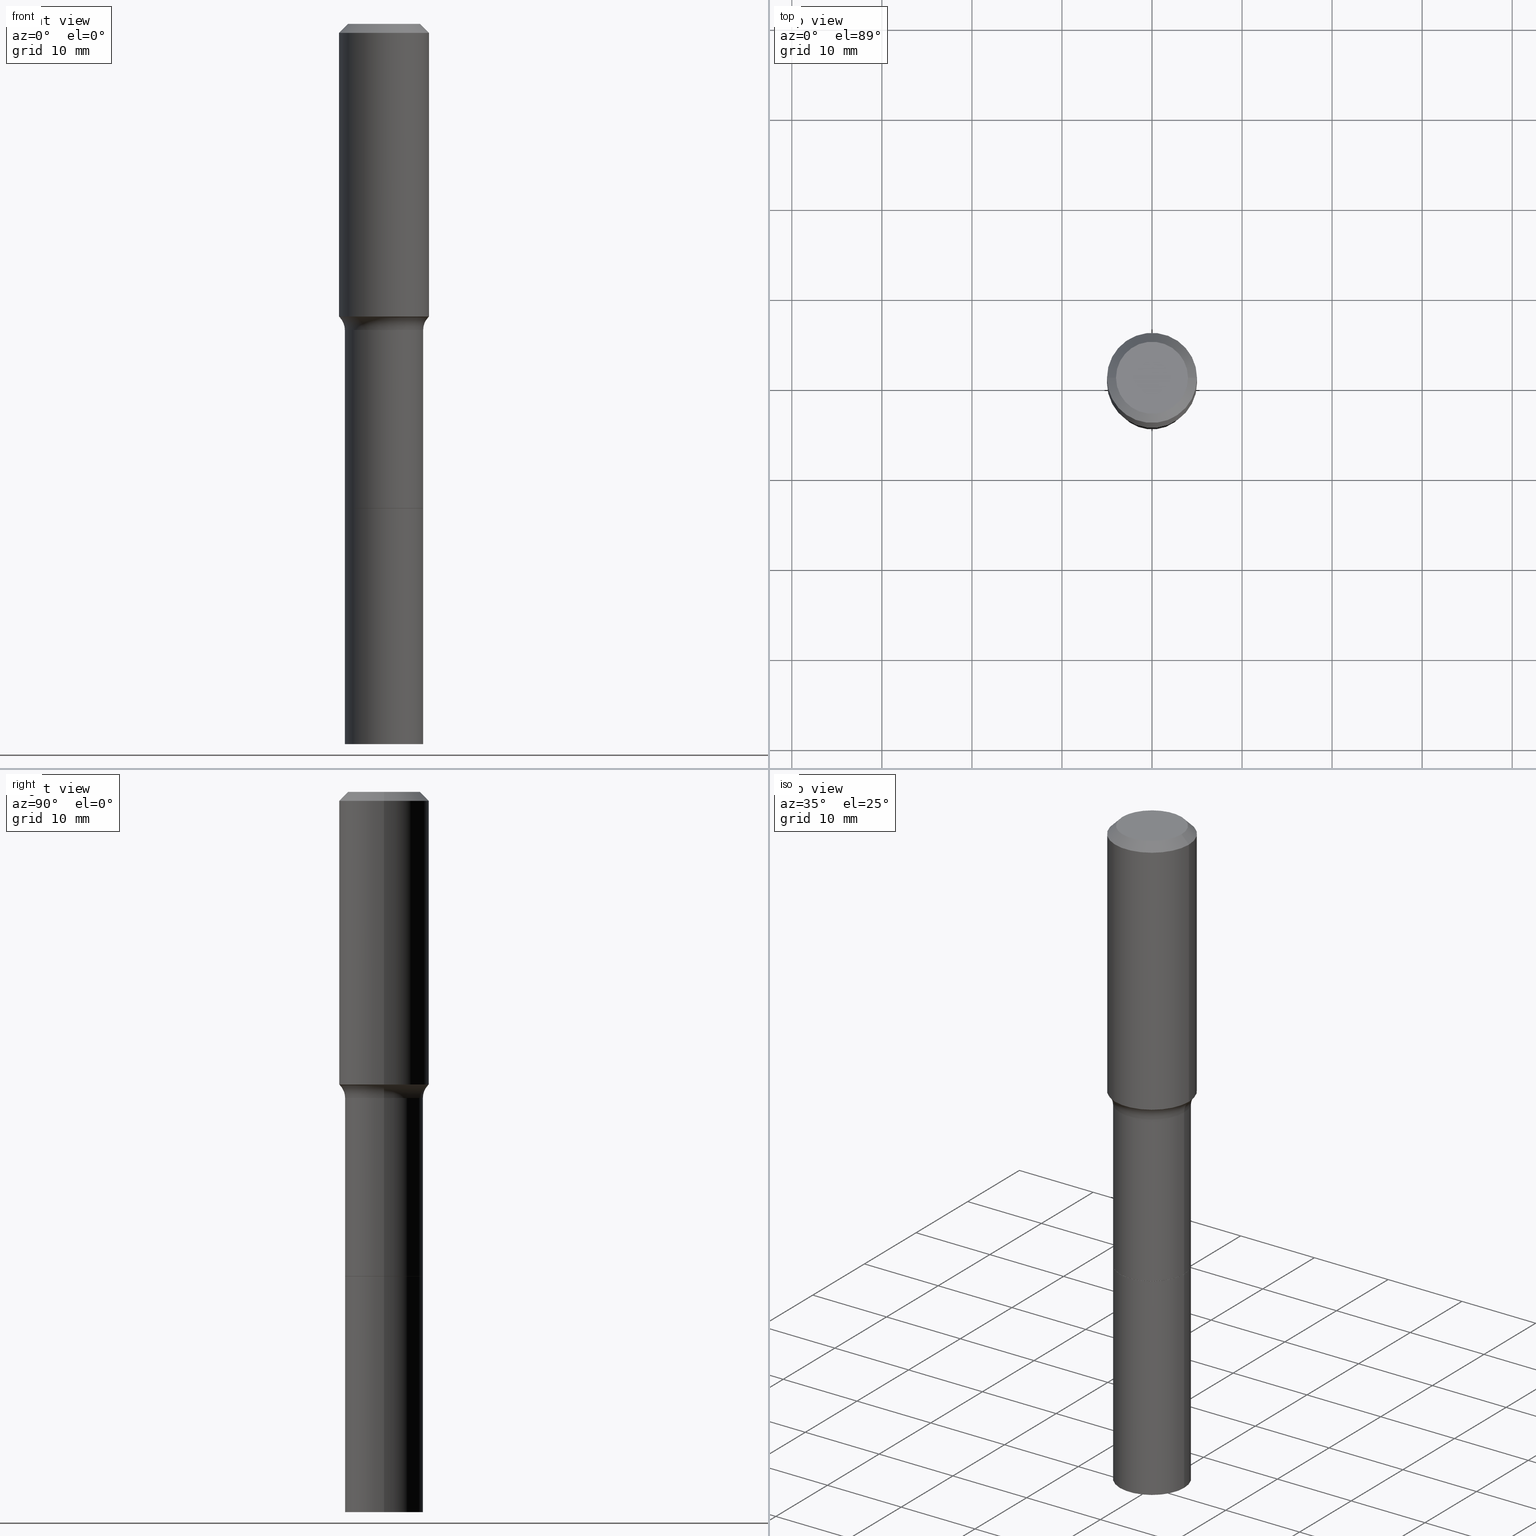
[diagram: canonical four-view strip — front | top / right | iso, engineering-drawing reading convention]
A machine part, canonical four-view strip (front | top / right | iso — engineering-drawing reading convention). The complete STEP part file that produces these views, byte-faithful:
ISO-10303-21;
HEADER;
FILE_DESCRIPTION (( 'STEP AP203' ),
    '1' );
FILE_NAME ('67764.STEP',
    '2025-04-01T15:30:21',
    ( '' ),
    ( '' ),
    'SwSTEP 2.0',
    'SolidWorks 2024',
    '' );
FILE_SCHEMA (( 'CONFIG_CONTROL_DESIGN' ));
ENDSEC;

DATA;
#1 = ADVANCED_FACE ( 'NONE', ( #477 ), #402, .F. ) ;
#2 = FACE_OUTER_BOUND ( 'NONE', #465, .T. ) ;
#3 = EDGE_LOOP ( 'NONE', ( #33, #315, #164, #121 ) ) ;
#4 = VECTOR ( 'NONE', #469, 39.37007874015748143 ) ;
#5 = CARTESIAN_POINT ( 'NONE',  ( 7.702248551960706711E-29, -1.099676962482037231E-14, -3.149600000000000399 ) ) ;
#6 = AXIS2_PLACEMENT_3D ( 'NONE', #200, #518, #433 ) ;
#7 = LINE ( 'NONE', #480, #115 ) ;
#8 = EDGE_LOOP ( 'NONE', ( #400, #41, #65, #184 ) ) ;
#9 = CARTESIAN_POINT ( 'NONE',  ( 0.1712500000000001243, -8.592884723026863288E-15, -2.118600000000000261 ) ) ;
#10 = VECTOR ( 'NONE', #87, 39.37007874015748143 ) ;
#11 = LOCAL_TIME ( 11, 30, 21.00000000000000000, #49 ) ;
#12 = APPROVAL_STATUS ( 'not_yet_approved' ) ;
#13 = DIRECTION ( 'NONE',  ( -1.000000000000000000, 7.105427357601001859E-15, 0.000000000000000000 ) ) ;
#14 = CONICAL_SURFACE ( 'NONE', #149, 0.1927417038704663244, 0.7504915783575625277 ) ;
#15 = EDGE_CURVE ( 'NONE', #82, #386, #328, .T. ) ;
#16 = APPLICATION_PROTOCOL_DEFINITION ( 'international standard', 'config_control_design', 1994, #340 ) ;
#17 = CYLINDRICAL_SURFACE ( 'NONE', #35, 0.1712499999999999856 ) ;
#18 = CARTESIAN_POINT ( 'NONE',  ( 7.702248551960706711E-29, -1.099676962482037231E-14, -3.149600000000000399 ) ) ;
#19 = CONICAL_SURFACE ( 'NONE', #361, 0.1927417038704663244, 0.7504915783575625277 ) ;
#20 = CYLINDRICAL_SURFACE ( 'NONE', #101, 0.1968500000000001082 ) ;
#21 = DIMENSIONAL_EXPONENTS ( 1.000000000000000000, 0.000000000000000000, 0.000000000000000000, 0.000000000000000000, 0.000000000000000000, 0.000000000000000000, 0.000000000000000000 ) ;
#22 = CARTESIAN_POINT ( 'NONE',  ( 3.140080086727243582E-29, -4.483202156393049043E-15, -1.284040131195000489 ) ) ;
#23 = DIRECTION ( 'NONE',  ( -2.445468806185136597E-29, 3.491481338843145583E-15, 1.000000000000000000 ) ) ;
#24 = ORIENTED_EDGE ( 'NONE', *, *, #503, .F. ) ;
#25 = EDGE_CURVE ( 'NONE', #114, #346, #7, .T. ) ;
#26 = CARTESIAN_POINT ( 'NONE',  ( 3.129306309250937286E-29, -4.467820057503775175E-15, -1.279634522974172794 ) ) ;
#27 = EDGE_LOOP ( 'NONE', ( #510, #459, #431, #506 ) ) ;
#28 = ADVANCED_FACE ( 'NONE', ( #130 ), #356, .T. ) ;
#29 = FACE_OUTER_BOUND ( 'NONE', #478, .T. ) ;
#30 = ORIENTED_EDGE ( 'NONE', *, *, #429, .T. ) ;
#31 = DIRECTION ( 'NONE',  ( -1.000000000000000000, 6.982962677686266711E-15, 0.000000000000000000 ) ) ;
#32 = CC_DESIGN_PERSON_AND_ORGANIZATION_ASSIGNMENT ( #414, #373, ( #60 ) ) ;
#33 = ORIENTED_EDGE ( 'NONE', *, *, #380, .T. ) ;
#34 = DIRECTION ( 'NONE',  ( -2.445468806185136597E-29, 3.491481338843145583E-15, 1.000000000000000000 ) ) ;
#35 = AXIS2_PLACEMENT_3D ( 'NONE', #372, #56, #215 ) ;
#36 = LOCAL_TIME ( 11, 30, 21.00000000000000000, #408 ) ;
#37 = CIRCLE ( 'NONE', #146, 0.07999999999999996003 ) ;
#38 = EDGE_LOOP ( 'NONE', ( #228, #310, #397, #43 ) ) ;
#39 = CARTESIAN_POINT ( 'NONE',  ( -0.1968500000000000527, 1.237136582792286422E-15, -0.03937000000000030059 ) ) ;
#40 = CARTESIAN_POINT ( 'NONE',  ( 5.180970212783830997E-29, -7.397052364473088378E-15, -2.118600000000000261 ) ) ;
#41 = ORIENTED_EDGE ( 'NONE', *, *, #166, .T. ) ;
#42 = CARTESIAN_POINT ( 'NONE',  ( -0.1968500000000001082, 1.398703375343757985E-15, -9.682923725166787881E-30 ) ) ;
#43 = ORIENTED_EDGE ( 'NONE', *, *, #232, .F. ) ;
#44 = CIRCLE ( 'NONE', #251, 0.1968500000000000527 ) ;
#45 = PERSON_AND_ORGANIZATION_ROLE ( 'creator' ) ;
#46 = ADVANCED_FACE ( 'NONE', ( #92 ), #14, .T. ) ;
#47 = ORIENTED_EDGE ( 'NONE', *, *, #326, .T. ) ;
#48 = PRODUCT ( '67764', '67764', '', ( #479 ) ) ;
#49 = COORDINATED_UNIVERSAL_TIME_OFFSET ( 5, 0, .BEHIND. ) ;
#50 = DIRECTION ( 'NONE',  ( 1.000000000000000000, -6.982962677686264344E-15, 0.000000000000000000 ) ) ;
#51 = CIRCLE ( 'NONE', #269, 0.1707500000000000129 ) ;
#52 = COORDINATED_UNIVERSAL_TIME_OFFSET ( 5, 0, .BEHIND. ) ;
#53 = CARTESIAN_POINT ( 'NONE',  ( -0.1712500000000000133, -7.980106559657557892E-15, -2.118600000000000261 ) ) ;
#54 = DIRECTION ( 'NONE',  ( 2.438088387897960049E-29, -3.491481338843145188E-15, -1.000000000000000000 ) ) ;
#55 = PERSON_AND_ORGANIZATION ( #57, #201 ) ;
#56 = DIRECTION ( 'NONE',  ( -2.445468806185136597E-29, 3.491481338843145583E-15, 1.000000000000000000 ) ) ;
#57 = PERSON ( 'UNSPECIFIED', 'UNSPECIFIED', 'UNSPECIFIED', ('UNSPECIFIED'), ('UNSPECIFIED'), ('UNSPECIFIED') ) ;
#58 = DIRECTION ( 'NONE',  ( -2.445468806185136597E-29, 3.491481338843145583E-15, 1.000000000000000000 ) ) ;
#59 = CONICAL_SURFACE ( 'NONE', #111, 0.1968500000000000527, 0.7853981633974450594 ) ;
#60 = PRODUCT_DEFINITION_FORMATION_WITH_SPECIFIED_SOURCE ( 'ANY', '', #48, .NOT_KNOWN. ) ;
#61 = DIRECTION ( 'NONE',  ( -2.445468806185136597E-29, 3.491481338843145583E-15, 1.000000000000000000 ) ) ;
#62 = EDGE_CURVE ( 'NONE', #119, #233, #273, .T. ) ;
#63 = CARTESIAN_POINT ( 'NONE',  ( 3.273504543959424474E-29, -4.673696920175435525E-15, -1.338600000000000234 ) ) ;
#64 = EDGE_CURVE ( 'NONE', #320, #346, #349, .T. ) ;
#65 = ORIENTED_EDGE ( 'NONE', *, *, #123, .T. ) ;
#66 = CARTESIAN_POINT ( 'NONE',  ( 2.814045157332559915E-29, -1.078662376088720765E-14, -2.118600000000000261 ) ) ;
#67 = EDGE_LOOP ( 'NONE', ( #75, #117, #191, #342 ) ) ;
#68 = ADVANCED_FACE ( 'NONE', ( #415 ), #17, .T. ) ;
#69 = AXIS2_PLACEMENT_3D ( 'NONE', #100, #108, #185 ) ;
#70 = DIRECTION ( 'NONE',  ( -2.445468806185136597E-29, 3.491481338843145583E-15, 1.000000000000000000 ) ) ;
#71 = AXIS2_PLACEMENT_3D ( 'NONE', #131, #258, #490 ) ;
#72 = DIRECTION ( 'NONE',  ( 1.000000000000000000, -6.982962677686266711E-15, 4.876176775795935793E-29 ) ) ;
#73 = ORIENTED_EDGE ( 'NONE', *, *, #206, .F. ) ;
#74 = CARTESIAN_POINT ( 'NONE',  ( -0.1712499999999999856, 1.216804434989171466E-15, -8.423676342061525262E-30 ) ) ;
#75 = ORIENTED_EDGE ( 'NONE', *, *, #429, .F. ) ;
#76 = DIRECTION ( 'NONE',  ( -2.445468806185136597E-29, 3.491481338843145583E-15, 1.000000000000000000 ) ) ;
#77 = AXIS2_PLACEMENT_3D ( 'NONE', #132, #334, #13 ) ;
#78 = AXIS2_PLACEMENT_3D ( 'NONE', #511, #466, #274 ) ;
#79 = EDGE_CURVE ( 'NONE', #391, #405, #374, .T. ) ;
#80 = CARTESIAN_POINT ( 'NONE',  ( -0.1927417038704663244, -3.113689980761206518E-15, -1.284040131195000489 ) ) ;
#81 =( LENGTH_UNIT ( ) NAMED_UNIT ( * ) SI_UNIT ( $, .METRE. ) );
#82 = VERTEX_POINT ( 'NONE', #142 ) ;
#83 = DIRECTION ( 'NONE',  ( 1.000000000000000000, -6.982962677686265133E-15, 0.000000000000000000 ) ) ;
#84 = EDGE_LOOP ( 'NONE', ( #428, #152, #277, #88 ) ) ;
#85 = ADVANCED_BREP_SHAPE_REPRESENTATION ( '67764', ( #86, #256, #71 ), #113 ) ;
#86 = MANIFOLD_SOLID_BREP ( 'Body-Move/Copy2[1]', #203 ) ;
#87 = DIRECTION ( 'NONE',  ( -2.445468806185136877E-29, 3.491481338843145188E-15, 1.000000000000000000 ) ) ;
#88 = ORIENTED_EDGE ( 'NONE', *, *, #64, .F. ) ;
#89 = AXIS2_PLACEMENT_3D ( 'NONE', #343, #348, #460 ) ;
#90 = APPLICATION_PROTOCOL_DEFINITION ( 'international standard', 'config_control_design', 1994, #368 ) ;
#91 = DIRECTION ( 'NONE',  ( 1.000000000000000000, -6.982962677686266711E-15, 4.876176775795935793E-29 ) ) ;
#92 = FACE_OUTER_BOUND ( 'NONE', #318, .T. ) ;
#93 = CARTESIAN_POINT ( 'NONE',  ( 0.1712499999999999856, -1.195832358553773135E-15, 8.350452728550539064E-30 ) ) ;
#94 = PERSON_AND_ORGANIZATION_ROLE ( 'creator' ) ;
#95 = DIRECTION ( 'NONE',  ( 1.000000000000000000, -6.982962677686265133E-15, 0.000000000000000000 ) ) ;
#96 = AXIS2_PLACEMENT_3D ( 'NONE', #22, #70, #454 ) ;
#97 = CARTESIAN_POINT ( 'NONE',  ( 0.1707500000000000129, -8.589393241688020280E-15, -2.118600000000000261 ) ) ;
#98 = APPROVAL_STATUS ( 'not_yet_approved' ) ;
#99 = CYLINDRICAL_SURFACE ( 'NONE', #434, 0.1968500000000001082 ) ;
#100 = CARTESIAN_POINT ( 'NONE',  ( 5.180970212783830997E-29, -7.397052364473088378E-15, -2.118600000000000261 ) ) ;
#101 = AXIS2_PLACEMENT_3D ( 'NONE', #491, #497, #409 ) ;
#102 = PRODUCT_RELATED_PRODUCT_CATEGORY ( 'detail', '', ( #48 ) ) ;
#103 = CARTESIAN_POINT ( 'NONE',  ( 5.180970212783830997E-29, -7.397052364473088378E-15, -2.118600000000000261 ) ) ;
#104 = VERTEX_POINT ( 'NONE', #338 ) ;
#105 = DIRECTION ( 'NONE',  ( -2.445468806185136597E-29, 3.491481338843145583E-15, 1.000000000000000000 ) ) ;
#106 = EDGE_CURVE ( 'NONE', #436, #119, #171, .T. ) ;
#107 = ORIENTED_EDGE ( 'NONE', *, *, #194, .F. ) ;
#108 = DIRECTION ( 'NONE',  ( -2.445468806185136597E-29, 3.491481338843145583E-15, 1.000000000000000000 ) ) ;
#109 = CC_DESIGN_PERSON_AND_ORGANIZATION_ASSIGNMENT ( #212, #45, ( #60 ) ) ;
#110 = ORIENTED_EDGE ( 'NONE', *, *, #352, .T. ) ;
#111 = AXIS2_PLACEMENT_3D ( 'NONE', #235, #283, #435 ) ;
#112 = CARTESIAN_POINT ( 'NONE',  ( 5.180970212783832118E-29, -7.397052364473089956E-15, -2.118600000000000261 ) ) ;
#113 =( GEOMETRIC_REPRESENTATION_CONTEXT ( 3 ) GLOBAL_UNCERTAINTY_ASSIGNED_CONTEXT ( ( #416 ) ) GLOBAL_UNIT_ASSIGNED_CONTEXT ( ( #358, #165, #135 ) ) REPRESENTATION_CONTEXT ( 'NONE', 'WORKASPACE' ) );
#114 = VERTEX_POINT ( 'NONE', #97 ) ;
#115 = VECTOR ( 'NONE', #167, 39.37007874015748143 ) ;
#116 = CARTESIAN_POINT ( 'NONE',  ( 9.627810689950955906E-31, -1.374596203102556794E-16, -0.03937000000000030059 ) ) ;
#117 = ORIENTED_EDGE ( 'NONE', *, *, #281, .T. ) ;
#118 = DIRECTION ( 'NONE',  ( -2.445468806185136597E-29, 3.491481338843145583E-15, 1.000000000000000000 ) ) ;
#119 = VERTEX_POINT ( 'NONE', #292 ) ;
#120 = AXIS2_PLACEMENT_3D ( 'NONE', #252, #175, #136 ) ;
#121 = ORIENTED_EDGE ( 'NONE', *, *, #160, .F. ) ;
#122 = DIRECTION ( 'NONE',  ( -2.445468806185136597E-29, 3.491481338843145583E-15, 1.000000000000000000 ) ) ;
#123 = EDGE_CURVE ( 'NONE', #350, #104, #249, .T. ) ;
#124 = VERTEX_POINT ( 'NONE', #177 ) ;
#125 = CARTESIAN_POINT ( 'NONE',  ( 0.1968500000000000527, -1.512055823412797583E-15, -0.03937000000000030059 ) ) ;
#126 = ORIENTED_EDGE ( 'NONE', *, *, #396, .T. ) ;
#127 = ADVANCED_FACE ( 'NONE', ( #300 ), #20, .T. ) ;
#128 = PERSON_AND_ORGANIZATION ( #57, #201 ) ;
#129 = CIRCLE ( 'NONE', #323, 0.1707500000000000129 ) ;
#130 = FACE_OUTER_BOUND ( 'NONE', #353, .T. ) ;
#131 = CARTESIAN_POINT ( 'NONE',  ( 0.000000000000000000, 0.000000000000000000, 0.000000000000000000 ) ) ;
#132 = CARTESIAN_POINT ( 'NONE',  ( -0.2512499999999999734, -2.888458296578183998E-15, -1.338600000000000234 ) ) ;
#133 = SECURITY_CLASSIFICATION_LEVEL ( 'unclassified' ) ;
#134 = DIRECTION ( 'NONE',  ( -2.445468806185136597E-29, 3.491481338843145583E-15, 1.000000000000000000 ) ) ;
#135 =( NAMED_UNIT ( * ) SI_UNIT ( $, .STERADIAN. ) SOLID_ANGLE_UNIT ( ) );
#136 = DIRECTION ( 'NONE',  ( 1.000000000000000000, -6.982962677686265922E-15, 4.876223630392693006E-29 ) ) ;
#137 = APPROVAL_PERSON_ORGANIZATION ( #55, #197, #248 ) ;
#138 = DATE_TIME_ROLE ( 'classification_date' ) ;
#139 = DIRECTION ( 'NONE',  ( -2.445468806185136877E-29, 3.491481338843145188E-15, 1.000000000000000000 ) ) ;
#140 = EDGE_CURVE ( 'NONE', #391, #168, #463, .T. ) ;
#141 = FACE_OUTER_BOUND ( 'NONE', #359, .T. ) ;
#142 = CARTESIAN_POINT ( 'NONE',  ( -0.1927417038704663244, -3.113689980761206518E-15, -1.284040131195000489 ) ) ;
#143 = EDGE_CURVE ( 'NONE', #82, #354, #304, .T. ) ;
#144 = DIRECTION ( 'NONE',  ( -2.445468806185136597E-29, 3.491481338843145583E-15, 1.000000000000000000 ) ) ;
#145 = ORIENTED_EDGE ( 'NONE', *, *, #493, .F. ) ;
#146 = AXIS2_PLACEMENT_3D ( 'NONE', #246, #487, #208 ) ;
#147 = FACE_OUTER_BOUND ( 'NONE', #243, .T. ) ;
#148 = ORIENTED_EDGE ( 'NONE', *, *, #503, .T. ) ;
#149 = AXIS2_PLACEMENT_3D ( 'NONE', #247, #515, #236 ) ;
#150 = LINE ( 'NONE', #309, #305 ) ;
#151 = FACE_OUTER_BOUND ( 'NONE', #8, .T. ) ;
#152 = ORIENTED_EDGE ( 'NONE', *, *, #206, .T. ) ;
#153 = CIRCLE ( 'NONE', #418, 0.1712499999999999023 ) ;
#154 = LINE ( 'NONE', #74, #10 ) ;
#155 = APPROVAL_PERSON_ORGANIZATION ( #333, #365, #406 ) ;
#156 = EDGE_LOOP ( 'NONE', ( #223, #231 ) ) ;
#157 = ADVANCED_FACE ( 'NONE', ( #446 ), #494, .F. ) ;
#158 = CARTESIAN_POINT ( 'NONE',  ( -0.1968500000000000527, -9.039364635632571956E-16, -0.03937000000000030059 ) ) ;
#159 = ORIENTED_EDGE ( 'NONE', *, *, #308, .T. ) ;
#160 = EDGE_CURVE ( 'NONE', #346, #467, #298, .T. ) ;
#161 = FACE_OUTER_BOUND ( 'NONE', #38, .T. ) ;
#162 = ORIENTED_EDGE ( 'NONE', *, *, #450, .F. ) ;
#163 = AXIS2_PLACEMENT_3D ( 'NONE', #116, #122, #438 ) ;
#164 = ORIENTED_EDGE ( 'NONE', *, *, #301, .F. ) ;
#165 =( NAMED_UNIT ( * ) PLANE_ANGLE_UNIT ( ) SI_UNIT ( $, .RADIAN. ) );
#166 = EDGE_CURVE ( 'NONE', #82, #350, #440, .T. ) ;
#167 = DIRECTION ( 'NONE',  ( 0.7071067811864509833, -2.468850131081245741E-15, 0.7071067811866440511 ) ) ;
#168 = VERTEX_POINT ( 'NONE', #210 ) ;
#169 = CIRCLE ( 'NONE', #163, 0.1968500000000000527 ) ;
#170 = CARTESIAN_POINT ( 'NONE',  ( 0.1927417038704663244, -5.829110280954173531E-15, -1.284040131195000489 ) ) ;
#171 = LINE ( 'NONE', #9, #268 ) ;
#172 = CALENDAR_DATE ( 2025, 1, 4 ) ;
#173 = CARTESIAN_POINT ( 'NONE',  ( -9.427742298522567634E-47, 1.346031739168368355E-32, 3.855188123715870730E-18 ) ) ;
#174 = APPROVAL_DATE_TIME ( #207, #197 ) ;
#175 = DIRECTION ( 'NONE',  ( -2.445468806185136597E-29, 3.491481338843145583E-15, 1.000000000000000000 ) ) ;
#176 = SECURITY_CLASSIFICATION ( '', '', #133 ) ;
#177 = CARTESIAN_POINT ( 'NONE',  ( -0.1712500000000002354, -7.980106559657554736E-15, -3.149600000000000399 ) ) ;
#178 = DIRECTION ( 'NONE',  ( 1.000000000000000000, -6.982962677686266711E-15, 0.000000000000000000 ) ) ;
#179 = ORIENTED_EDGE ( 'NONE', *, *, #106, .T. ) ;
#180 = DIRECTION ( 'NONE',  ( 2.445468806185136597E-29, -3.491481338843145583E-15, -1.000000000000000000 ) ) ;
#181 = ORIENTED_EDGE ( 'NONE', *, *, #396, .F. ) ;
#182 = VECTOR ( 'NONE', #285, 39.37007874015748143 ) ;
#183 = CARTESIAN_POINT ( 'NONE',  ( 3.129306309250937286E-29, -4.467820057503775175E-15, -1.279634522974172794 ) ) ;
#184 = ORIENTED_EDGE ( 'NONE', *, *, #281, .F. ) ;
#185 = DIRECTION ( 'NONE',  ( 1.000000000000000000, -6.982962677686269077E-15, 0.000000000000000000 ) ) ;
#186 = ORIENTED_EDGE ( 'NONE', *, *, #453, .T. ) ;
#187 = CARTESIAN_POINT ( 'NONE',  ( 3.273504543959424474E-29, -4.673696920175435525E-15, -1.338600000000000234 ) ) ;
#188 = EDGE_LOOP ( 'NONE', ( #148, #110, #286, #196 ) ) ;
#189 = DIRECTION ( 'NONE',  ( 1.000000000000000000, -6.982962677686266711E-15, 0.000000000000000000 ) ) ;
#190 = EDGE_CURVE ( 'NONE', #436, #124, #512, .T. ) ;
#191 = ORIENTED_EDGE ( 'NONE', *, *, #493, .T. ) ;
#192 = LENGTH_MEASURE_WITH_UNIT ( LENGTH_MEASURE( 0.02539999999999999897 ), #81 );
#193 = DIRECTION ( 'NONE',  ( -2.445468806185136597E-29, 3.491481338843145583E-15, 1.000000000000000000 ) ) ;
#194 = EDGE_CURVE ( 'NONE', #168, #391, #464, .T. ) ;
#195 = DIRECTION ( 'NONE',  ( -2.445468806185136597E-29, 3.491481338843145583E-15, 1.000000000000000000 ) ) ;
#196 = ORIENTED_EDGE ( 'NONE', *, *, #25, .F. ) ;
#197 = APPROVAL ( #254, 'UNSPECIFIED' ) ;
#198 = LINE ( 'NONE', #42, #199 ) ;
#199 = VECTOR ( 'NONE', #517, 39.37007874015748143 ) ;
#200 = CARTESIAN_POINT ( 'NONE',  ( 5.180970212783830997E-29, -7.397052364473088378E-15, -2.118600000000000261 ) ) ;
#201 = ORGANIZATION ( 'UNSPECIFIED', 'UNSPECIFIED', '' ) ;
#202 = APPROVAL_DATE_TIME ( #205, #365 ) ;
#203 = CLOSED_SHELL ( 'NONE', ( #245, #393, #28, #1 ) ) ;
#204 = ORIENTED_EDGE ( 'NONE', *, *, #483, .T. ) ;
#205 = DATE_AND_TIME ( #295, #261 ) ;
#206 = EDGE_CURVE ( 'NONE', #423, #114, #129, .T. ) ;
#207 = DATE_AND_TIME ( #486, #11 ) ;
#208 = DIRECTION ( 'NONE',  ( 1.000000000000000000, -6.982962677686262766E-15, 0.000000000000000000 ) ) ;
#209 = TOROIDAL_SURFACE ( 'NONE', #504, 0.2512499999999999734, 0.08000000000000000167 ) ;
#210 = CARTESIAN_POINT ( 'NONE',  ( -0.1574800000000000089, 1.168406772637159815E-15, 3.855188123707939751E-18 ) ) ;
#211 = APPROVAL ( #12, 'UNSPECIFIED' ) ;
#212 = PERSON_AND_ORGANIZATION ( #57, #201 ) ;
#213 = CARTESIAN_POINT ( 'NONE',  ( 0.1968500000000000527, -1.487948651171581996E-15, -0.03937000000000030059 ) ) ;
#214 = CALENDAR_DATE ( 2025, 1, 4 ) ;
#215 = DIRECTION ( 'NONE',  ( 1.000000000000000000, -6.982962677686266711E-15, 4.876176775795935793E-29 ) ) ;
#216 = ADVANCED_FACE ( 'NONE', ( #255 ), #99, .T. ) ;
#217 = AXIS2_PLACEMENT_3D ( 'NONE', #332, #455, #50 ) ;
#218 = DIRECTION ( 'NONE',  ( -1.000000000000000000, 6.982962677686265922E-15, -4.876176775795935793E-29 ) ) ;
#219 = AXIS2_PLACEMENT_3D ( 'NONE', #376, #54, #218 ) ;
#220 = CONICAL_SURFACE ( 'NONE', #371, 0.1707500000000000129, 0.7853981633973118326 ) ;
#221 = CARTESIAN_POINT ( 'NONE',  ( 3.140080086727243582E-29, -4.483202156393049043E-15, -1.284040131195000489 ) ) ;
#222 = FACE_OUTER_BOUND ( 'NONE', #84, .T. ) ;
#223 = ORIENTED_EDGE ( 'NONE', *, *, #62, .T. ) ;
#224 = DIRECTION ( 'NONE',  ( 1.000000000000000000, -6.982962677686266711E-15, 0.000000000000000000 ) ) ;
#225 = ORIENTED_EDGE ( 'NONE', *, *, #190, .F. ) ;
#226 = TOROIDAL_SURFACE ( 'NONE', #513, 0.2512499999999999734, 0.08000000000000000167 ) ;
#227 = CYLINDRICAL_SURFACE ( 'NONE', #411, 0.1712499999999999856 ) ;
#228 = ORIENTED_EDGE ( 'NONE', *, *, #166, .F. ) ;
#229 = CLOSED_SHELL ( 'NONE', ( #294, #509, #127, #46, #472, #339, #68, #468, #312, #216, #383, #157, #329, #362 ) ) ;
#230 = DIRECTION ( 'NONE',  ( -2.445468806185136597E-29, 3.491481338843145583E-15, 1.000000000000000000 ) ) ;
#231 = ORIENTED_EDGE ( 'NONE', *, *, #347, .T. ) ;
#232 = EDGE_CURVE ( 'NONE', #350, #467, #37, .T. ) ;
#233 = VERTEX_POINT ( 'NONE', #53 ) ;
#234 = CIRCLE ( 'NONE', #316, 0.1712500000000000133 ) ;
#235 = CARTESIAN_POINT ( 'NONE',  ( 9.627810689950955906E-31, -1.374596203102556794E-16, -0.03937000000000030059 ) ) ;
#236 = DIRECTION ( 'NONE',  ( 1.000000000000000000, -6.982962677686264344E-15, 0.000000000000000000 ) ) ;
#237 = LINE ( 'NONE', #319, #4 ) ;
#238 = ORIENTED_EDGE ( 'NONE', *, *, #79, .T. ) ;
#239 = CC_DESIGN_DATE_AND_TIME_ASSIGNMENT ( #330, #370, ( #403 ) ) ;
#240 = ORIENTED_EDGE ( 'NONE', *, *, #194, .T. ) ;
#241 = CARTESIAN_POINT ( 'NONE',  ( 3.273504543959424474E-29, -4.673696920175435525E-15, -1.338600000000000234 ) ) ;
#242 = CIRCLE ( 'NONE', #345, 0.1968500000000001915 ) ;
#243 = EDGE_LOOP ( 'NONE', ( #470, #204, #284, #461 ) ) ;
#244 = CALENDAR_DATE ( 2025, 1, 4 ) ;
#245 = ADVANCED_FACE ( 'NONE', ( #147 ), #508, .T. ) ;
#246 = CARTESIAN_POINT ( 'NONE',  ( 0.2512499999999999734, -6.428166292944109721E-15, -1.338600000000000234 ) ) ;
#247 = CARTESIAN_POINT ( 'NONE',  ( 3.140080086727243582E-29, -4.483202156393049043E-15, -1.284040131195000489 ) ) ;
#248 = APPROVAL_ROLE ( '' ) ;
#249 = LINE ( 'NONE', #170, #296 ) ;
#250 = PERSON_AND_ORGANIZATION ( #57, #201 ) ;
#251 = AXIS2_PLACEMENT_3D ( 'NONE', #381, #144, #178 ) ;
#252 = CARTESIAN_POINT ( 'NONE',  ( -9.427742298522567634E-47, 1.346031739168368355E-32, 3.855188123715870730E-18 ) ) ;
#253 = EDGE_CURVE ( 'NONE', #104, #386, #242, .T. ) ;
#254 = APPROVAL_STATUS ( 'not_yet_approved' ) ;
#255 = FACE_OUTER_BOUND ( 'NONE', #67, .T. ) ;
#256 = MANIFOLD_SOLID_BREP ( 'Body-Move/Copy2[2]', #229 ) ;
#257 = CC_DESIGN_PERSON_AND_ORGANIZATION_ASSIGNMENT ( #293, #335, ( #176 ) ) ;
#258 = DIRECTION ( 'NONE',  ( 0.000000000000000000, 0.000000000000000000, 1.000000000000000000 ) ) ;
#259 = CARTESIAN_POINT ( 'NONE',  ( 0.000000000000000000, 0.000000000000000000, 0.000000000000000000 ) ) ;
#260 = DIRECTION ( 'NONE',  ( 1.000000000000000000, -6.982962677686266711E-15, 0.000000000000000000 ) ) ;
#261 = LOCAL_TIME ( 11, 30, 21.00000000000000000, #492 ) ;
#262 = DIRECTION ( 'NONE',  ( -0.7071067811864509833, 7.493145998870005484E-15, 0.7071067811866440511 ) ) ;
#263 = EDGE_LOOP ( 'NONE', ( #240, #265 ) ) ;
#264 = DIRECTION ( 'NONE',  ( 1.000000000000000000, -6.982962677686265922E-15, 0.000000000000000000 ) ) ;
#265 = ORIENTED_EDGE ( 'NONE', *, *, #140, .T. ) ;
#266 = DIRECTION ( 'NONE',  ( -2.445468806185136597E-29, 3.491481338843145583E-15, 1.000000000000000000 ) ) ;
#267 = ORIENTED_EDGE ( 'NONE', *, *, #253, .T. ) ;
#268 = VECTOR ( 'NONE', #139, 39.37007874015748143 ) ;
#269 = AXIS2_PLACEMENT_3D ( 'NONE', #471, #118, #432 ) ;
#270 = DIRECTION ( 'NONE',  ( 1.000000000000000000, -6.982962677686266711E-15, 0.000000000000000000 ) ) ;
#271 = LOCAL_TIME ( 11, 30, 21.00000000000000000, #52 ) ;
#272 = EDGE_LOOP ( 'NONE', ( #382, #437, #366, #282 ) ) ;
#273 = CIRCLE ( 'NONE', #444, 0.1712500000000000133 ) ;
#274 = DIRECTION ( 'NONE',  ( -1.000000000000000000, 6.982962677686265922E-15, -4.876176775795935793E-29 ) ) ;
#275 = ORIENTED_EDGE ( 'NONE', *, *, #453, .F. ) ;
#276 = CARTESIAN_POINT ( 'NONE',  ( -0.1712500000000001243, -6.180247929483916715E-15, -2.118600000000000261 ) ) ;
#277 = ORIENTED_EDGE ( 'NONE', *, *, #25, .T. ) ;
#278 = AXIS2_PLACEMENT_3D ( 'NONE', #173, #58, #488 ) ;
#279 = CIRCLE ( 'NONE', #495, 0.1712499999999999023 ) ;
#280 = CARTESIAN_POINT ( 'NONE',  ( 0.1712499999999999023, -5.869529278729208069E-15, -1.338600000000000234 ) ) ;
#281 = EDGE_CURVE ( 'NONE', #386, #104, #441, .T. ) ;
#282 = ORIENTED_EDGE ( 'NONE', *, *, #301, .T. ) ;
#283 = DIRECTION ( 'NONE',  ( 2.445468806185136597E-29, -3.491481338843145583E-15, -1.000000000000000000 ) ) ;
#284 = ORIENTED_EDGE ( 'NONE', *, *, #62, .F. ) ;
#285 = DIRECTION ( 'NONE',  ( -0.7071067811865452413, 2.468850131082233000E-15, -0.7071067811865497932 ) ) ;
#286 = ORIENTED_EDGE ( 'NONE', *, *, #380, .F. ) ;
#287 = AXIS2_PLACEMENT_3D ( 'NONE', #18, #134, #95 ) ;
#288 = DATE_AND_TIME ( #172, #484 ) ;
#289 = AXIS2_PLACEMENT_3D ( 'NONE', #384, #180, #31 ) ;
#290 = DIRECTION ( 'NONE',  ( -2.445468806185136597E-29, 3.491481338843145583E-15, 1.000000000000000000 ) ) ;
#291 = CC_DESIGN_DATE_AND_TIME_ASSIGNMENT ( #288, #138, ( #176 ) ) ;
#292 = CARTESIAN_POINT ( 'NONE',  ( 0.1712500000000000133, -8.592884723026861710E-15, -2.118600000000000261 ) ) ;
#293 = PERSON_AND_ORGANIZATION ( #57, #201 ) ;
#294 = ADVANCED_FACE ( 'NONE', ( #507 ), #474, .T. ) ;
#295 = CALENDAR_DATE ( 2025, 1, 4 ) ;
#296 = VECTOR ( 'NONE', #500, 39.37007874015748143 ) ;
#297 = CARTESIAN_POINT ( 'NONE',  ( 5.180970212783832118E-29, -7.397052364473089956E-15, -2.118600000000000261 ) ) ;
#298 = LINE ( 'NONE', #93, #360 ) ;
#299 = PLANE ( 'NONE',  #78 ) ;
#300 = FACE_OUTER_BOUND ( 'NONE', #307, .T. ) ;
#301 = EDGE_CURVE ( 'NONE', #467, #354, #153, .T. ) ;
#302 = DESIGN_CONTEXT ( 'detailed design', #368, 'design' ) ;
#303 = FACE_OUTER_BOUND ( 'NONE', #389, .T. ) ;
#304 = CIRCLE ( 'NONE', #77, 0.07999999999999996003 ) ;
#305 = VECTOR ( 'NONE', #262, 39.37007874015748143 ) ;
#306 = CC_DESIGN_APPROVAL ( #197, ( #60 ) ) ;
#307 = EDGE_LOOP ( 'NONE', ( #267, #30, #181, #145 ) ) ;
#308 = EDGE_CURVE ( 'NONE', #350, #82, #482, .T. ) ;
#309 = CARTESIAN_POINT ( 'NONE',  ( -0.1707500000000000129, -6.183800643162719191E-15, -2.118600000000000261 ) ) ;
#310 = ORIENTED_EDGE ( 'NONE', *, *, #143, .T. ) ;
#311 = PLANE ( 'NONE',  #331 ) ;
#312 = ADVANCED_FACE ( 'NONE', ( #151 ), #19, .T. ) ;
#313 = ORIENTED_EDGE ( 'NONE', *, *, #79, .F. ) ;
#314 = FACE_OUTER_BOUND ( 'NONE', #3, .T. ) ;
#315 = ORIENTED_EDGE ( 'NONE', *, *, #458, .T. ) ;
#316 = AXIS2_PLACEMENT_3D ( 'NONE', #103, #420, #390 ) ;
#317 = FACE_OUTER_BOUND ( 'NONE', #272, .T. ) ;
#318 = EDGE_LOOP ( 'NONE', ( #159, #426, #439, #327 ) ) ;
#319 = CARTESIAN_POINT ( 'NONE',  ( 0.1968500000000001082, -1.374596203102542397E-15, 9.598753983154305062E-30 ) ) ;
#320 = VERTEX_POINT ( 'NONE', #422 ) ;
#321 = DIRECTION ( 'NONE',  ( -2.445468806185136877E-29, 3.491481338843145188E-15, 1.000000000000000000 ) ) ;
#322 = CARTESIAN_POINT ( 'NONE',  ( 5.180970212783830997E-29, -7.397052364473088378E-15, -2.118600000000000261 ) ) ;
#323 = AXIS2_PLACEMENT_3D ( 'NONE', #297, #452, #449 ) ;
#324 = ORIENTED_EDGE ( 'NONE', *, *, #450, .T. ) ;
#325 = LINE ( 'NONE', #39, #182 ) ;
#326 = EDGE_CURVE ( 'NONE', #394, #405, #44, .T. ) ;
#327 = ORIENTED_EDGE ( 'NONE', *, *, #123, .F. ) ;
#328 = LINE ( 'NONE', #80, #498 ) ;
#329 = ADVANCED_FACE ( 'NONE', ( #303 ), #311, .F. ) ;
#330 = DATE_AND_TIME ( #244, #36 ) ;
#331 = AXIS2_PLACEMENT_3D ( 'NONE', #66, #424, #341 ) ;
#332 = CARTESIAN_POINT ( 'NONE',  ( 3.140080086727243582E-29, -4.483202156393049043E-15, -1.284040131195000489 ) ) ;
#333 = PERSON_AND_ORGANIZATION ( #57, #201 ) ;
#334 = DIRECTION ( 'NONE',  ( 7.105427357601001859E-15, 1.000000000000000000, -3.491481338843145583E-15 ) ) ;
#335 = PERSON_AND_ORGANIZATION_ROLE ( 'classification_officer' ) ;
#336 = DIRECTION ( 'NONE',  ( 1.000000000000000000, -6.982962677686267499E-15, 0.000000000000000000 ) ) ;
#337 = CARTESIAN_POINT ( 'NONE',  ( -0.1968500000000001915, -3.069116682160016598E-15, -1.279634522974172794 ) ) ;
#338 = CARTESIAN_POINT ( 'NONE',  ( 0.1968500000000001915, -5.842416260606316783E-15, -1.279634522974172794 ) ) ;
#339 = ADVANCED_FACE ( 'NONE', ( #314 ), #227, .T. ) ;
#340 = APPLICATION_CONTEXT ( 'configuration controlled 3d designs of mechanical parts and assemblies' ) ;
#341 = DIRECTION ( 'NONE',  ( 1.000000000000000000, -6.982962677686265922E-15, 4.876176775795935793E-29 ) ) ;
#342 = ORIENTED_EDGE ( 'NONE', *, *, #326, .F. ) ;
#343 = CARTESIAN_POINT ( 'NONE',  ( 5.179747478380738195E-29, -7.395306623803667663E-15, -2.118100000000000094 ) ) ;
#344 = VECTOR ( 'NONE', #369, 39.37007874015748143 ) ;
#345 = AXIS2_PLACEMENT_3D ( 'NONE', #26, #61, #260 ) ;
#346 = VERTEX_POINT ( 'NONE', #379 ) ;
#347 = EDGE_CURVE ( 'NONE', #233, #119, #234, .T. ) ;
#348 = DIRECTION ( 'NONE',  ( -2.445468806185136597E-29, 3.491481338843145583E-15, 1.000000000000000000 ) ) ;
#349 = CIRCLE ( 'NONE', #485, 0.1712500000000000411 ) ;
#350 = VERTEX_POINT ( 'NONE', #388 ) ;
#351 = DIRECTION ( 'NONE',  ( 1.000000000000000000, -6.982962677686264344E-15, 0.000000000000000000 ) ) ;
#352 = EDGE_CURVE ( 'NONE', #423, #320, #150, .T. ) ;
#353 = EDGE_LOOP ( 'NONE', ( #421, #186, #179, #473 ) ) ;
#354 = VERTEX_POINT ( 'NONE', #462 ) ;
#355 = LINE ( 'NONE', #276, #377 ) ;
#356 = CYLINDRICAL_SURFACE ( 'NONE', #398, 0.1712500000000001243 ) ;
#357 = DIRECTION ( 'NONE',  ( 1.000000000000000000, -6.982962677686268288E-15, 0.000000000000000000 ) ) ;
#358 =( CONVERSION_BASED_UNIT ( 'INCH', #192 ) LENGTH_UNIT ( ) NAMED_UNIT ( #21 ) );
#359 = EDGE_LOOP ( 'NONE', ( #225, #275 ) ) ;
#360 = VECTOR ( 'NONE', #378, 39.37007874015748143 ) ;
#361 = AXIS2_PLACEMENT_3D ( 'NONE', #221, #266, #351 ) ;
#362 = ADVANCED_FACE ( 'NONE', ( #222 ), #220, .T. ) ;
#363 = DIRECTION ( 'NONE',  ( -0.6819983600624991427, 7.399397606724289732E-15, 0.7313537016191699047 ) ) ;
#364 = SHAPE_DEFINITION_REPRESENTATION ( #516, #85 ) ;
#365 = APPROVAL ( #98, 'UNSPECIFIED' ) ;
#366 = ORIENTED_EDGE ( 'NONE', *, *, #232, .T. ) ;
#367 = PERSON_AND_ORGANIZATION ( #57, #201 ) ;
#368 = APPLICATION_CONTEXT ( 'configuration controlled 3d designs of mechanical parts and assemblies' ) ;
#369 = DIRECTION ( 'NONE',  ( 0.7071067811865452413, -7.319954787623248157E-15, -0.7071067811865497932 ) ) ;
#370 = DATE_TIME_ROLE ( 'creation_date' ) ;
#371 = AXIS2_PLACEMENT_3D ( 'NONE', #112, #23, #264 ) ;
#372 = CARTESIAN_POINT ( 'NONE',  ( 0.000000000000000000, 0.000000000000000000, 0.000000000000000000 ) ) ;
#373 = PERSON_AND_ORGANIZATION_ROLE ( 'design_supplier' ) ;
#374 = LINE ( 'NONE', #213, #344 ) ;
#375 = PERSON_AND_ORGANIZATION_ROLE ( 'design_owner' ) ;
#376 = CARTESIAN_POINT ( 'NONE',  ( -4.713871149261283817E-47, 6.730158695841841775E-33, 1.927594061857935365E-18 ) ) ;
#377 = VECTOR ( 'NONE', #321, 39.37007874015748143 ) ;
#378 = DIRECTION ( 'NONE',  ( -2.445468806185136877E-29, 3.491481338843145188E-15, 1.000000000000000000 ) ) ;
#379 = CARTESIAN_POINT ( 'NONE',  ( 0.1712500000000000411, -8.591138982357440995E-15, -2.118100000000000094 ) ) ;
#380 = EDGE_CURVE ( 'NONE', #346, #320, #385, .T. ) ;
#381 = CARTESIAN_POINT ( 'NONE',  ( 9.627810689950955906E-31, -1.374596203102556794E-16, -0.03937000000000030059 ) ) ;
#382 = ORIENTED_EDGE ( 'NONE', *, *, #143, .F. ) ;
#383 = ADVANCED_FACE ( 'NONE', ( #29 ), #425, .T. ) ;
#384 = CARTESIAN_POINT ( 'NONE',  ( 9.627810689950955906E-31, -1.374596203102556794E-16, -0.03937000000000030059 ) ) ;
#385 = CIRCLE ( 'NONE', #89, 0.1712500000000000411 ) ;
#386 = VERTEX_POINT ( 'NONE', #337 ) ;
#387 = CC_DESIGN_PERSON_AND_ORGANIZATION_ASSIGNMENT ( #367, #375, ( #48 ) ) ;
#388 = CARTESIAN_POINT ( 'NONE',  ( 0.1927417038704663244, -5.829110280954173531E-15, -1.284040131195000489 ) ) ;
#389 = EDGE_LOOP ( 'NONE', ( #24, #73 ) ) ;
#390 = DIRECTION ( 'NONE',  ( 1.000000000000000000, -6.982962677686268288E-15, 0.000000000000000000 ) ) ;
#391 = VERTEX_POINT ( 'NONE', #499 ) ;
#392 = DIRECTION ( 'NONE',  ( 1.000000000000000000, -6.982962677686266711E-15, 4.883557194083112340E-29 ) ) ;
#393 = ADVANCED_FACE ( 'NONE', ( #141 ), #299, .T. ) ;
#394 = VERTEX_POINT ( 'NONE', #158 ) ;
#395 = AXIS2_PLACEMENT_3D ( 'NONE', #427, #419, #501 ) ;
#396 = EDGE_CURVE ( 'NONE', #405, #394, #169, .T. ) ;
#397 = ORIENTED_EDGE ( 'NONE', *, *, #476, .T. ) ;
#398 = AXIS2_PLACEMENT_3D ( 'NONE', #322, #290, #443 ) ;
#399 = CARTESIAN_POINT ( 'NONE',  ( 0.1712500000000002354, -1.219260198337414722E-14, -3.149600000000000399 ) ) ;
#400 = ORIENTED_EDGE ( 'NONE', *, *, #15, .F. ) ;
#401 = CARTESIAN_POINT ( 'NONE',  ( 3.273504543959424474E-29, -4.673696920175435525E-15, -1.338600000000000234 ) ) ;
#402 = PLANE ( 'NONE',  #6 ) ;
#403 = PRODUCT_DEFINITION ( 'UNKNOWN', '', #60, #302 ) ;
#404 = DIRECTION ( 'NONE',  ( 1.000000000000000000, -6.982962677686266711E-15, 4.883557194083112340E-29 ) ) ;
#405 = VERTEX_POINT ( 'NONE', #125 ) ;
#406 = APPROVAL_ROLE ( '' ) ;
#407 = DIRECTION ( 'NONE',  ( -2.445468806185136597E-29, 3.491481338843145583E-15, 1.000000000000000000 ) ) ;
#408 = COORDINATED_UNIVERSAL_TIME_OFFSET ( 5, 0, .BEHIND. ) ;
#409 = DIRECTION ( 'NONE',  ( 1.000000000000000000, -6.982962677686266711E-15, 4.876176775795935793E-29 ) ) ;
#410 = APPROVAL_DATE_TIME ( #445, #211 ) ;
#411 = AXIS2_PLACEMENT_3D ( 'NONE', #505, #105, #72 ) ;
#412 = APPROVAL_PERSON_ORGANIZATION ( #250, #211, #451 ) ;
#413 = CARTESIAN_POINT ( 'NONE',  ( 5.179747478380738195E-29, -7.395306623803667663E-15, -2.118100000000000094 ) ) ;
#414 = PERSON_AND_ORGANIZATION ( #57, #201 ) ;
#415 = FACE_OUTER_BOUND ( 'NONE', #27, .T. ) ;
#416 = UNCERTAINTY_MEASURE_WITH_UNIT (LENGTH_MEASURE( 1.000000000000000082E-05 ), #358, 'distance_accuracy_value', 'NONE');
#417 = DIRECTION ( 'NONE',  ( -2.445468806185136597E-29, 3.491481338843145583E-15, 1.000000000000000000 ) ) ;
#418 = AXIS2_PLACEMENT_3D ( 'NONE', #63, #230, #224 ) ;
#419 = DIRECTION ( 'NONE',  ( -2.445468806185136597E-29, 3.491481338843145583E-15, 1.000000000000000000 ) ) ;
#420 = DIRECTION ( 'NONE',  ( -2.445468806185136597E-29, 3.491481338843145583E-15, 1.000000000000000000 ) ) ;
#421 = ORIENTED_EDGE ( 'NONE', *, *, #483, .F. ) ;
#422 = CARTESIAN_POINT ( 'NONE',  ( -0.1712500000000000411, -4.817697337000379142E-15, -2.118100000000000094 ) ) ;
#423 = VERTEX_POINT ( 'NONE', #475 ) ;
#424 = DIRECTION ( 'NONE',  ( -2.438088387897960049E-29, 3.491481338843145188E-15, 1.000000000000000000 ) ) ;
#425 = CONICAL_SURFACE ( 'NONE', #289, 0.1968500000000000527, 0.7853981633974450594 ) ;
#426 = ORIENTED_EDGE ( 'NONE', *, *, #15, .T. ) ;
#427 = CARTESIAN_POINT ( 'NONE',  ( 5.180970212783832118E-29, -7.397052364473089956E-15, -2.118600000000000261 ) ) ;
#428 = ORIENTED_EDGE ( 'NONE', *, *, #352, .F. ) ;
#429 = EDGE_CURVE ( 'NONE', #386, #394, #198, .T. ) ;
#430 = DIRECTION ( 'NONE',  ( -2.445468806185136597E-29, 3.491481338843145583E-15, 1.000000000000000000 ) ) ;
#431 = ORIENTED_EDGE ( 'NONE', *, *, #160, .T. ) ;
#432 = DIRECTION ( 'NONE',  ( 1.000000000000000000, -6.982962677686265922E-15, 0.000000000000000000 ) ) ;
#433 = DIRECTION ( 'NONE',  ( -1.000000000000000000, 6.982962677686265922E-15, -4.876176775795935793E-29 ) ) ;
#434 = AXIS2_PLACEMENT_3D ( 'NONE', #259, #417, #91 ) ;
#435 = DIRECTION ( 'NONE',  ( -1.000000000000000000, 6.982962677686266711E-15, 0.000000000000000000 ) ) ;
#436 = VERTEX_POINT ( 'NONE', #399 ) ;
#437 = ORIENTED_EDGE ( 'NONE', *, *, #308, .F. ) ;
#438 = DIRECTION ( 'NONE',  ( 1.000000000000000000, -6.982962677686266711E-15, 0.000000000000000000 ) ) ;
#439 = ORIENTED_EDGE ( 'NONE', *, *, #253, .F. ) ;
#440 = CIRCLE ( 'NONE', #217, 0.1927417038704663244 ) ;
#441 = CIRCLE ( 'NONE', #448, 0.1968500000000001915 ) ;
#442 = CC_DESIGN_SECURITY_CLASSIFICATION ( #176, ( #60 ) ) ;
#443 = DIRECTION ( 'NONE',  ( 1.000000000000000000, -6.982962677686269077E-15, 0.000000000000000000 ) ) ;
#444 = AXIS2_PLACEMENT_3D ( 'NONE', #40, #193, #357 ) ;
#445 = DATE_AND_TIME ( #214, #271 ) ;
#446 = FACE_OUTER_BOUND ( 'NONE', #263, .T. ) ;
#447 = COORDINATED_UNIVERSAL_TIME_OFFSET ( 5, 0, .BEHIND. ) ;
#448 = AXIS2_PLACEMENT_3D ( 'NONE', #183, #457, #270 ) ;
#449 = DIRECTION ( 'NONE',  ( 1.000000000000000000, -6.982962677686265922E-15, 0.000000000000000000 ) ) ;
#450 = EDGE_CURVE ( 'NONE', #168, #394, #325, .T. ) ;
#451 = APPROVAL_ROLE ( '' ) ;
#452 = DIRECTION ( 'NONE',  ( -2.445468806185136597E-29, 3.491481338843145583E-15, 1.000000000000000000 ) ) ;
#453 = EDGE_CURVE ( 'NONE', #124, #436, #456, .T. ) ;
#454 = DIRECTION ( 'NONE',  ( 1.000000000000000000, -6.982962677686264344E-15, 0.000000000000000000 ) ) ;
#455 = DIRECTION ( 'NONE',  ( -2.445468806185136597E-29, 3.491481338843145583E-15, 1.000000000000000000 ) ) ;
#456 = CIRCLE ( 'NONE', #514, 0.1712500000000002354 ) ;
#457 = DIRECTION ( 'NONE',  ( -2.445468806185136597E-29, 3.491481338843145583E-15, 1.000000000000000000 ) ) ;
#458 = EDGE_CURVE ( 'NONE', #320, #354, #154, .T. ) ;
#459 = ORIENTED_EDGE ( 'NONE', *, *, #64, .T. ) ;
#460 = DIRECTION ( 'NONE',  ( 1.000000000000000000, -6.982962677686267499E-15, 0.000000000000000000 ) ) ;
#461 = ORIENTED_EDGE ( 'NONE', *, *, #106, .F. ) ;
#462 = CARTESIAN_POINT ( 'NONE',  ( -0.1712499999999999023, -4.817697337000379931E-15, -1.338600000000000234 ) ) ;
#463 = CIRCLE ( 'NONE', #278, 0.1574800000000000089 ) ;
#464 = CIRCLE ( 'NONE', #120, 0.1574800000000000089 ) ;
#465 = EDGE_LOOP ( 'NONE', ( #502, #238, #126, #162 ) ) ;
#466 = DIRECTION ( 'NONE',  ( 2.438088387897960049E-29, -3.491481338843145188E-15, -1.000000000000000000 ) ) ;
#467 = VERTEX_POINT ( 'NONE', #280 ) ;
#468 = ADVANCED_FACE ( 'NONE', ( #317 ), #209, .F. ) ;
#469 = DIRECTION ( 'NONE',  ( -2.445468806185136877E-29, 3.491481338843145188E-15, 1.000000000000000000 ) ) ;
#470 = ORIENTED_EDGE ( 'NONE', *, *, #190, .T. ) ;
#471 = CARTESIAN_POINT ( 'NONE',  ( 5.180970212783832118E-29, -7.397052364473089956E-15, -2.118600000000000261 ) ) ;
#472 = ADVANCED_FACE ( 'NONE', ( #161 ), #226, .F. ) ;
#473 = ORIENTED_EDGE ( 'NONE', *, *, #347, .F. ) ;
#474 = CONICAL_SURFACE ( 'NONE', #395, 0.1707500000000000129, 0.7853981633973118326 ) ;
#475 = CARTESIAN_POINT ( 'NONE',  ( -0.1707500000000000129, -6.181151415988607201E-15, -2.118600000000000261 ) ) ;
#476 = EDGE_CURVE ( 'NONE', #354, #467, #279, .T. ) ;
#477 = FACE_OUTER_BOUND ( 'NONE', #156, .T. ) ;
#478 = EDGE_LOOP ( 'NONE', ( #313, #107, #324, #47 ) ) ;
#479 = MECHANICAL_CONTEXT ( 'NONE', #340, 'mechanical' ) ;
#480 = CARTESIAN_POINT ( 'NONE',  ( 0.1707500000000000129, -8.589393241688020280E-15, -2.118600000000000261 ) ) ;
#481 = CC_DESIGN_APPROVAL ( #211, ( #403 ) ) ;
#482 = CIRCLE ( 'NONE', #96, 0.1927417038704663244 ) ;
#483 = EDGE_CURVE ( 'NONE', #124, #233, #355, .T. ) ;
#484 = LOCAL_TIME ( 11, 30, 21.00000000000000000, #447 ) ;
#485 = AXIS2_PLACEMENT_3D ( 'NONE', #413, #407, #336 ) ;
#486 = CALENDAR_DATE ( 2025, 1, 4 ) ;
#487 = DIRECTION ( 'NONE',  ( -6.982962677686266711E-15, -1.000000000000000000, 3.491481338843145583E-15 ) ) ;
#488 = DIRECTION ( 'NONE',  ( 1.000000000000000000, -6.982962677686265922E-15, 4.876223630392693006E-29 ) ) ;
#489 = CC_DESIGN_PERSON_AND_ORGANIZATION_ASSIGNMENT ( #128, #94, ( #403 ) ) ;
#490 = DIRECTION ( 'NONE',  ( 1.000000000000000000, 0.000000000000000000, 0.000000000000000000 ) ) ;
#491 = CARTESIAN_POINT ( 'NONE',  ( 0.000000000000000000, 0.000000000000000000, 0.000000000000000000 ) ) ;
#492 = COORDINATED_UNIVERSAL_TIME_OFFSET ( 5, 0, .BEHIND. ) ;
#493 = EDGE_CURVE ( 'NONE', #104, #405, #237, .T. ) ;
#494 = PLANE ( 'NONE',  #219 ) ;
#495 = AXIS2_PLACEMENT_3D ( 'NONE', #401, #34, #189 ) ;
#496 = CC_DESIGN_APPROVAL ( #365, ( #176 ) ) ;
#497 = DIRECTION ( 'NONE',  ( -2.445468806185136597E-29, 3.491481338843145583E-15, 1.000000000000000000 ) ) ;
#498 = VECTOR ( 'NONE', #363, 39.37007874015748143 ) ;
#499 = CARTESIAN_POINT ( 'NONE',  ( 0.1574800000000000089, -1.284169937930321386E-15, 3.855188123724205385E-18 ) ) ;
#500 = DIRECTION ( 'NONE',  ( 0.6819983600624991427, -2.208861293262481719E-15, 0.7313537016191699047 ) ) ;
#501 = DIRECTION ( 'NONE',  ( 1.000000000000000000, -6.982962677686265922E-15, 0.000000000000000000 ) ) ;
#502 = ORIENTED_EDGE ( 'NONE', *, *, #140, .F. ) ;
#503 = EDGE_CURVE ( 'NONE', #114, #423, #51, .T. ) ;
#504 = AXIS2_PLACEMENT_3D ( 'NONE', #241, #195, #404 ) ;
#505 = CARTESIAN_POINT ( 'NONE',  ( 0.000000000000000000, 0.000000000000000000, 0.000000000000000000 ) ) ;
#506 = ORIENTED_EDGE ( 'NONE', *, *, #476, .F. ) ;
#507 = FACE_OUTER_BOUND ( 'NONE', #188, .T. ) ;
#508 = CYLINDRICAL_SURFACE ( 'NONE', #69, 0.1712500000000001243 ) ;
#509 = ADVANCED_FACE ( 'NONE', ( #2 ), #59, .T. ) ;
#510 = ORIENTED_EDGE ( 'NONE', *, *, #458, .F. ) ;
#511 = CARTESIAN_POINT ( 'NONE',  ( 7.702248551960706711E-29, -1.099676962482037231E-14, -3.149600000000000399 ) ) ;
#512 = CIRCLE ( 'NONE', #287, 0.1712500000000002354 ) ;
#513 = AXIS2_PLACEMENT_3D ( 'NONE', #187, #430, #392 ) ;
#514 = AXIS2_PLACEMENT_3D ( 'NONE', #5, #76, #83 ) ;
#515 = DIRECTION ( 'NONE',  ( -2.445468806185136597E-29, 3.491481338843145583E-15, 1.000000000000000000 ) ) ;
#516 = PRODUCT_DEFINITION_SHAPE ( 'NONE', 'NONE',  #403 ) ;
#517 = DIRECTION ( 'NONE',  ( -2.445468806185136877E-29, 3.491481338843145188E-15, 1.000000000000000000 ) ) ;
#518 = DIRECTION ( 'NONE',  ( 2.438088387897960049E-29, -3.491481338843145188E-15, -1.000000000000000000 ) ) ;
ENDSEC;
END-ISO-10303-21;
